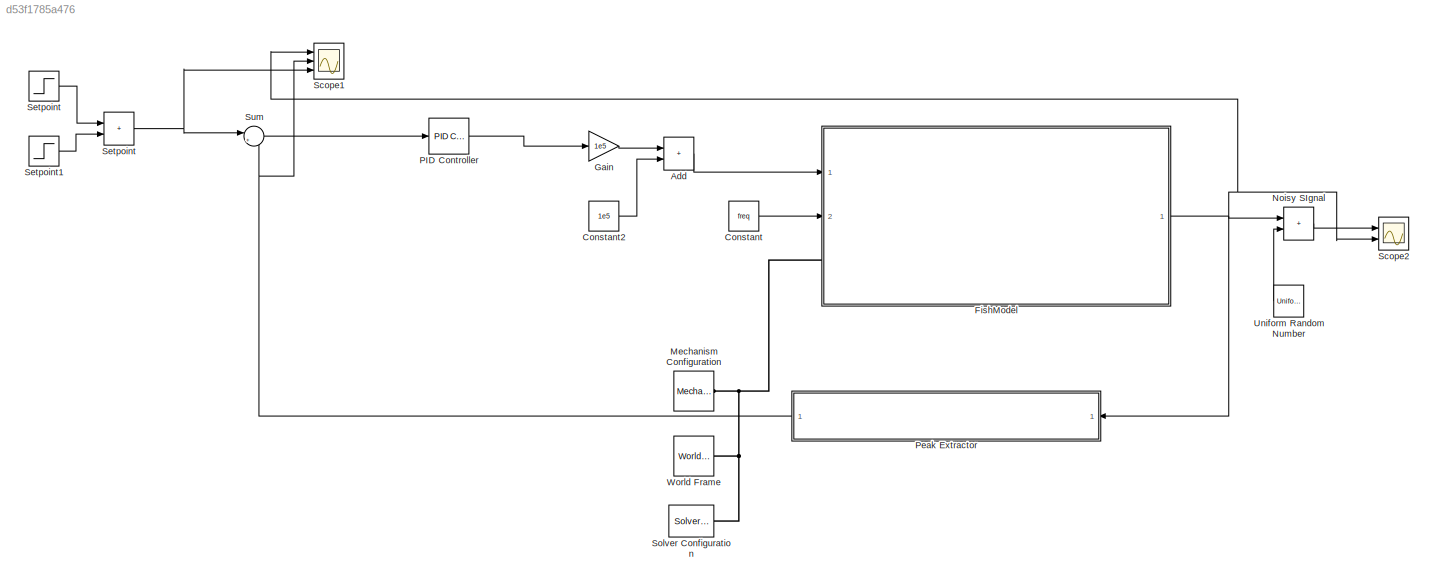
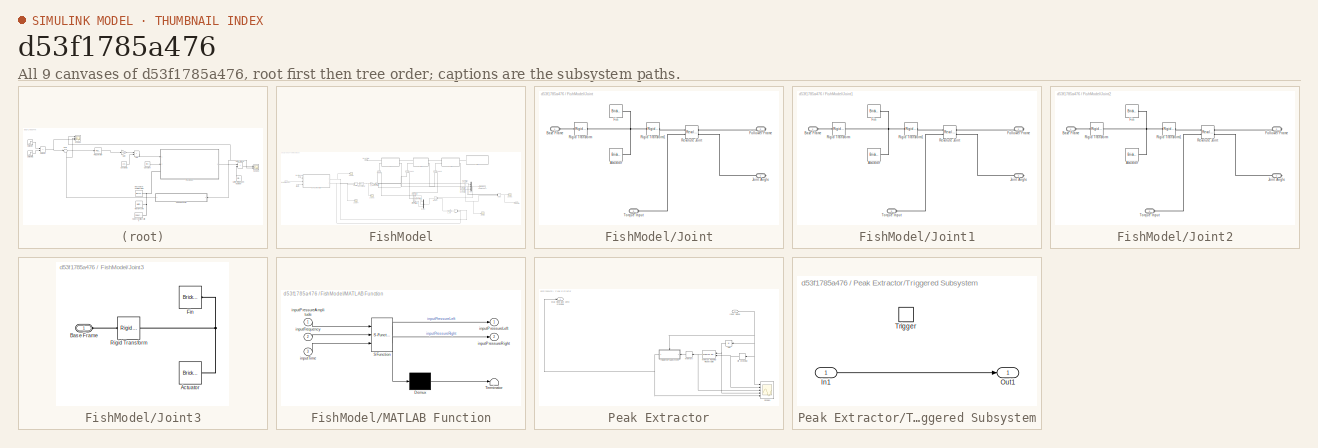
[diagram: thumbnail index - all 9 canvases of the model, root first then tree order]
MODEL slx_d53f1785a476
KIND model
CONFIG AbsTol = auto
CONFIG EnableMultiTasking = off
CONFIG FixedStep = auto
CONFIG InitFcn = initSoftFishCocontractionControl
CONFIG MaxStep = auto
CONFIG MinStep = auto
CONFIG RelTol = 1e-3
CONFIG SampleTimeConstraint = Unconstrained
CONFIG Solver = VariableStepAuto
CONFIG SolverName = VariableStepAuto
CONFIG StartTime = 0.0
CONFIG StopTime = 40
BLOCK [Sum] Add
  IconShape = rectangular
  Ports = [2, 1]
BLOCK [Constant] Constant
  Value = freq
BLOCK [Constant] Constant2
  Commented = on
  Value = 1e5
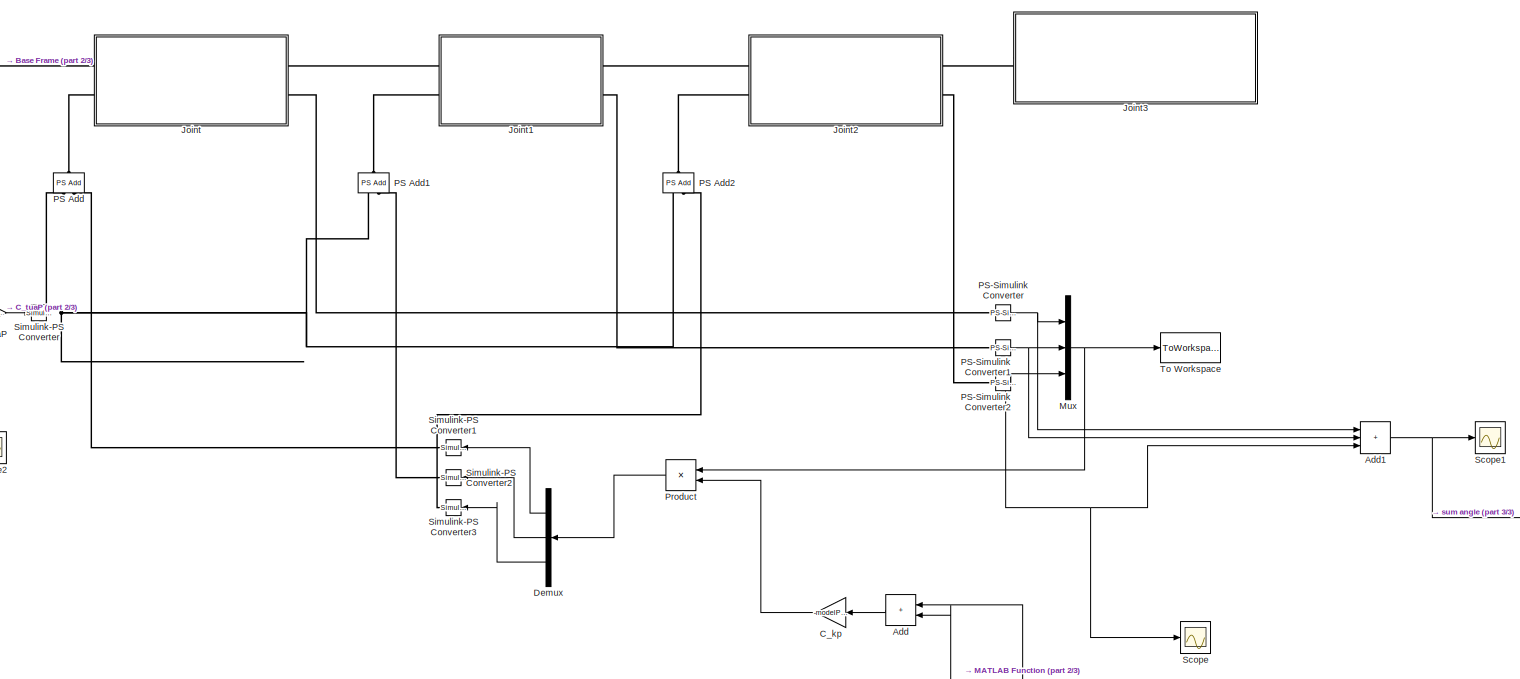
[diagram: FishModel - part 1/3, right side, full height]
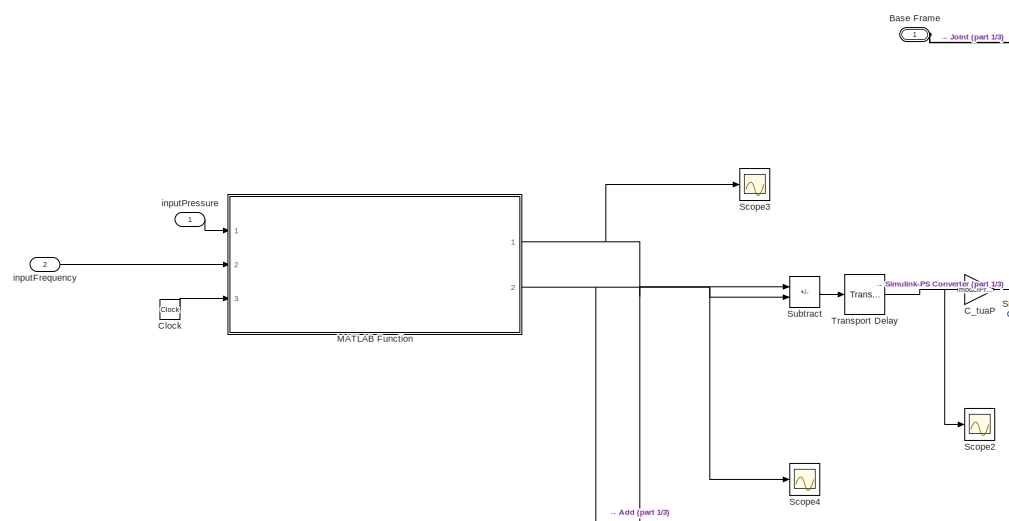
[diagram: FishModel - part 2/3, middle left region]
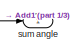
[diagram: FishModel - part 3/3, bottom right region]
BLOCK [SubSystem] FishModel
  Ports = [2, 1, 0, 0, 0, 1]
  RequestExecContextInheritance = off
BLOCK [Sum] FishModel/Add
  IconShape = rectangular
  Ports = [2, 1]
BLOCK [Sum] FishModel/Add1
  IconShape = rectangular
  Inputs = +++
  Ports = [3, 1]
BLOCK [PMIOPort] FishModel/Base Frame
  Side = Left
BLOCK [Gain] FishModel/C_kp
  Gain = -modelPressureStiffness
BLOCK [Gain] FishModel/C_tuaP
  Gain = modelPressureCoefficient
BLOCK [Clock] FishModel/Clock
BLOCK [Demux] FishModel/Demux
  Outputs = 3
  Ports = [1, 3]
BLOCK [SubSystem] FishModel/Joint
  Ports = [0, 0, 0, 0, 0, 2, 2]
  RequestExecContextInheritance = off
BLOCK [Reference] FishModel/Joint/Actuator  REF=sm_lib/Body Elements/Brick Solid
  Ports = [0, 0, 0, 0, 0, 0, 1]
  SourceBlock = sm_lib/Body Elements/Brick Solid
  SourceProductBaseCode = MS
  SourceType = Brick Solid
BLOCK [PMIOPort] FishModel/Joint/Base Frame
  Side = Left
BLOCK [Reference] FishModel/Joint/Fin  REF=sm_lib/Body Elements/Brick Solid
  Ports = [0, 0, 0, 0, 0, 0, 1]
  SourceBlock = sm_lib/Body Elements/Brick Solid
  SourceProductBaseCode = MS
  SourceType = Brick Solid
BLOCK [PMIOPort] FishModel/Joint/Follower Frame
  Port = 2
  Side = Right
BLOCK [PMIOPort] FishModel/Joint/Joint Angle 
  Port = 4
  Side = Right
BLOCK [Reference] FishModel/Joint/Revolute Joint  REF=sm_lib/Joints/Revolute Joint
  Ports = [0, 0, 0, 0, 0, 2, 2]
  SourceBlock = sm_lib/Joints/Revolute Joint
  SourceProductBaseCode = MS
  SourceType = Revolute Joint
BLOCK [Reference] FishModel/Joint/Rigid Transform  REF=sm_lib/Frames and
Transforms/Rigid
Transform
  Ports = [0, 0, 0, 0, 0, 1, 1]
  SourceBlock = sm_lib/Frames and\nTransforms/Rigid\nTransform
  SourceProductBaseCode = MS
  SourceType = Rigid\nTransform
BLOCK [Reference] FishModel/Joint/Rigid Transform1  REF=sm_lib/Frames and
Transforms/Rigid
Transform
  Ports = [0, 0, 0, 0, 0, 1, 1]
  SourceBlock = sm_lib/Frames and\nTransforms/Rigid\nTransform
  SourceProductBaseCode = MS
  SourceType = Rigid\nTransform
BLOCK [PMIOPort] FishModel/Joint/Torque Input
  Port = 3
  Side = Left
BLOCK [SubSystem] FishModel/Joint1
  Ports = [0, 0, 0, 0, 0, 2, 2]
  RequestExecContextInheritance = off
BLOCK [Reference] FishModel/Joint1/Actuator  REF=sm_lib/Body Elements/Brick Solid
  Ports = [0, 0, 0, 0, 0, 0, 1]
  SourceBlock = sm_lib/Body Elements/Brick Solid
  SourceProductBaseCode = MS
  SourceType = Brick Solid
BLOCK [PMIOPort] FishModel/Joint1/Base Frame
  Side = Left
BLOCK [Reference] FishModel/Joint1/Fin  REF=sm_lib/Body Elements/Brick Solid
  Ports = [0, 0, 0, 0, 0, 0, 1]
  SourceBlock = sm_lib/Body Elements/Brick Solid
  SourceProductBaseCode = MS
  SourceType = Brick Solid
BLOCK [PMIOPort] FishModel/Joint1/Follower Frame
  Port = 2
  Side = Right
BLOCK [PMIOPort] FishModel/Joint1/Joint Angle 
  Port = 4
  Side = Right
BLOCK [Reference] FishModel/Joint1/Revolute Joint  REF=sm_lib/Joints/Revolute Joint
  Ports = [0, 0, 0, 0, 0, 2, 2]
  SourceBlock = sm_lib/Joints/Revolute Joint
  SourceProductBaseCode = MS
  SourceType = Revolute Joint
BLOCK [Reference] FishModel/Joint1/Rigid Transform  REF=sm_lib/Frames and
Transforms/Rigid
Transform
  Ports = [0, 0, 0, 0, 0, 1, 1]
  SourceBlock = sm_lib/Frames and\nTransforms/Rigid\nTransform
  SourceProductBaseCode = MS
  SourceType = Rigid\nTransform
BLOCK [Reference] FishModel/Joint1/Rigid Transform1  REF=sm_lib/Frames and
Transforms/Rigid
Transform
  Ports = [0, 0, 0, 0, 0, 1, 1]
  SourceBlock = sm_lib/Frames and\nTransforms/Rigid\nTransform
  SourceProductBaseCode = MS
  SourceType = Rigid\nTransform
BLOCK [PMIOPort] FishModel/Joint1/Torque Input
  Port = 3
  Side = Left
BLOCK [SubSystem] FishModel/Joint2
  Ports = [0, 0, 0, 0, 0, 2, 2]
  RequestExecContextInheritance = off
BLOCK [Reference] FishModel/Joint2/Actuator  REF=sm_lib/Body Elements/Brick Solid
  Ports = [0, 0, 0, 0, 0, 0, 1]
  SourceBlock = sm_lib/Body Elements/Brick Solid
  SourceProductBaseCode = MS
  SourceType = Brick Solid
BLOCK [PMIOPort] FishModel/Joint2/Base Frame
  Side = Left
BLOCK [Reference] FishModel/Joint2/Fin  REF=sm_lib/Body Elements/Brick Solid
  Ports = [0, 0, 0, 0, 0, 0, 1]
  SourceBlock = sm_lib/Body Elements/Brick Solid
  SourceProductBaseCode = MS
  SourceType = Brick Solid
BLOCK [PMIOPort] FishModel/Joint2/Follower Frame
  Port = 2
  Side = Right
BLOCK [PMIOPort] FishModel/Joint2/Joint Angle 
  Port = 4
  Side = Right
BLOCK [Reference] FishModel/Joint2/Revolute Joint  REF=sm_lib/Joints/Revolute Joint
  Ports = [0, 0, 0, 0, 0, 2, 2]
  SourceBlock = sm_lib/Joints/Revolute Joint
  SourceProductBaseCode = MS
  SourceType = Revolute Joint
BLOCK [Reference] FishModel/Joint2/Rigid Transform  REF=sm_lib/Frames and
Transforms/Rigid
Transform
  Ports = [0, 0, 0, 0, 0, 1, 1]
  SourceBlock = sm_lib/Frames and\nTransforms/Rigid\nTransform
  SourceProductBaseCode = MS
  SourceType = Rigid\nTransform
BLOCK [Reference] FishModel/Joint2/Rigid Transform1  REF=sm_lib/Frames and
Transforms/Rigid
Transform
  Ports = [0, 0, 0, 0, 0, 1, 1]
  SourceBlock = sm_lib/Frames and\nTransforms/Rigid\nTransform
  SourceProductBaseCode = MS
  SourceType = Rigid\nTransform
BLOCK [PMIOPort] FishModel/Joint2/Torque Input
  Port = 3
  Side = Left
BLOCK [SubSystem] FishModel/Joint3
  Ports = [0, 0, 0, 0, 0, 1]
  RequestExecContextInheritance = off
BLOCK [Reference] FishModel/Joint3/Actuator  REF=sm_lib/Body Elements/Brick Solid
  Ports = [0, 0, 0, 0, 0, 0, 1]
  SourceBlock = sm_lib/Body Elements/Brick Solid
  SourceProductBaseCode = MS
  SourceType = Brick Solid
BLOCK [PMIOPort] FishModel/Joint3/Base Frame
  Side = Left
BLOCK [Reference] FishModel/Joint3/Fin  REF=sm_lib/Body Elements/Brick Solid
  Ports = [0, 0, 0, 0, 0, 0, 1]
  SourceBlock = sm_lib/Body Elements/Brick Solid
  SourceProductBaseCode = MS
  SourceType = Brick Solid
BLOCK [Reference] FishModel/Joint3/Rigid Transform  REF=sm_lib/Frames and
Transforms/Rigid
Transform
  Ports = [0, 0, 0, 0, 0, 1, 1]
  SourceBlock = sm_lib/Frames and\nTransforms/Rigid\nTransform
  SourceProductBaseCode = MS
  SourceType = Rigid\nTransform
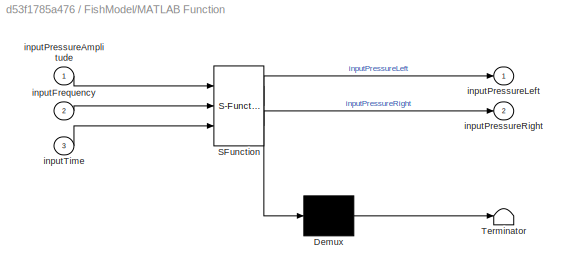
BLOCK [SubSystem] FishModel/MATLAB Function
  ErrorFcn = Stateflow.Translate.translate
  PermitHierarchicalResolution = ExplicitOnly
  Ports = [3, 2]
  RequestExecContextInheritance = off
  SFBlockType = MATLAB Function
  TreatAsAtomicUnit = on
BLOCK [Demux] FishModel/MATLAB Function/ Demux 
  Outputs = 1
  Ports = [1, 1]
BLOCK [S-Function] FishModel/MATLAB Function/ SFunction 
  EnableBusSupport = on
  FunctionName = sf_sfun
  PortCounts = [3 3]
  Ports = [3, 3]
  SFcnIsStateOwnerBlock = off
  SFunctionDeploymentMode = off
  Tag = Stateflow S-Function 2
BLOCK [Terminator] FishModel/MATLAB Function/ Terminator 
BLOCK [Inport] FishModel/MATLAB Function/inputFrequency
  Port = 2
BLOCK [Inport] FishModel/MATLAB Function/inputPressureAmplitude
BLOCK [Outport] FishModel/MATLAB Function/inputPressureLeft
BLOCK [Outport] FishModel/MATLAB Function/inputPressureRight
  Port = 2
BLOCK [Inport] FishModel/MATLAB Function/inputTime
  Port = 3
BLOCK [Mux] FishModel/Mux
  DisplayOption = bar
  Inputs = 3
  Ports = [3, 1]
BLOCK [Reference] FishModel/PS Add  REF=fl_lib/Physical Signals/Functions/PS Add
  NameLocation = right
  Ports = [0, 0, 0, 0, 0, 2, 1]
  SourceBlock = fl_lib/Physical Signals/Functions/PS Add
  SourceProductBaseCode = SS
  SourceType = PS Add
BLOCK [Reference] FishModel/PS Add1  REF=fl_lib/Physical Signals/Functions/PS Add
  NameLocation = right
  Ports = [0, 0, 0, 0, 0, 2, 1]
  SourceBlock = fl_lib/Physical Signals/Functions/PS Add
  SourceProductBaseCode = SS
  SourceType = PS Add
BLOCK [Reference] FishModel/PS Add2  REF=fl_lib/Physical Signals/Functions/PS Add
  NameLocation = right
  Ports = [0, 0, 0, 0, 0, 2, 1]
  SourceBlock = fl_lib/Physical Signals/Functions/PS Add
  SourceProductBaseCode = SS
  SourceType = PS Add
BLOCK [Reference] FishModel/PS-Simulink Converter  REF=nesl_utility/PS-Simulink
Converter
  Ports = [0, 1, 0, 0, 0, 1]
  SourceBlock = nesl_utility/PS-Simulink\nConverter
  SourceProductBaseCode = SS
  SourceType = PS-Simulink\nConverter
BLOCK [Reference] FishModel/PS-Simulink Converter1  REF=nesl_utility/PS-Simulink
Converter
  Ports = [0, 1, 0, 0, 0, 1]
  SourceBlock = nesl_utility/PS-Simulink\nConverter
  SourceProductBaseCode = SS
  SourceType = PS-Simulink\nConverter
BLOCK [Reference] FishModel/PS-Simulink Converter2  REF=nesl_utility/PS-Simulink
Converter
  Ports = [0, 1, 0, 0, 0, 1]
  SourceBlock = nesl_utility/PS-Simulink\nConverter
  SourceProductBaseCode = SS
  SourceType = PS-Simulink\nConverter
BLOCK [Product] FishModel/Product
  Ports = [2, 1]
BLOCK [Scope] FishModel/Scope
  Floating = off
  NumInputPorts = 1
  Ports = [1]
  ScopeSpecificationString = Simulink.scopes.TimeScopeBlockCfg('CurrentConfiguration', extmgr.ConfigurationSet(extmgr.Configuration('Core','General UI',true),extmgr.Configuration('Core','Source UI',true),extmgr.Configuration('Sources','WiredSimulink',true,'DataLoggingVariableName','ScopeData1'),extmgr.Configuration('Visuals','Time Domain',true,'SerializedDisplays',{struct('MinYLimReal','-0.20952','MaxYLimReal','0.43411','YLab...<+1410ch>
BLOCK [Scope] FishModel/Scope1
  Floating = off
  NumInputPorts = 1
  Ports = [1]
  ScopeSpecificationString = Simulink.scopes.TimeScopeBlockCfg('CurrentConfiguration', extmgr.ConfigurationSet(extmgr.Configuration('Core','General UI',true),extmgr.Configuration('Core','Source UI',true),extmgr.Configuration('Sources','WiredSimulink',true,'DataLoggingVariableName','ScopeData1'),extmgr.Configuration('Visuals','Time Domain',true,'SerializedDisplays',{struct('MinYLimReal','-0.95111','MaxYLimReal','1.6425','YLabe...<+1432ch>
BLOCK [Scope] FishModel/Scope2
  Floating = off
  NumInputPorts = 1
  Ports = [1]
  ScopeSpecificationString = Simulink.scopes.TimeScopeBlockCfg('CurrentConfiguration', extmgr.ConfigurationSet(extmgr.Configuration('Core','General UI',true),extmgr.Configuration('Core','Source UI',true),extmgr.Configuration('Sources','WiredSimulink',true,'DataLoggingVariableName','ScopeData1'),extmgr.Configuration('Visuals','Time Domain',true,'SerializedDisplays',{struct('MinYLimReal','-171029.09365','MaxYLimReal','169253.65...<+1441ch>
BLOCK [Scope] FishModel/Scope3
  Floating = off
  NumInputPorts = 1
  Ports = [1]
  ScopeSpecificationString = Simulink.scopes.TimeScopeBlockCfg('CurrentConfiguration', extmgr.ConfigurationSet(extmgr.Configuration('Core','General UI',true),extmgr.Configuration('Core','Source UI',true),extmgr.Configuration('Sources','WiredSimulink',true,'DataLoggingVariableName','ScopeData2'),extmgr.Configuration('Visuals','Time Domain',true,'SerializedDisplays',{struct('MinYLimReal','-16903.17287','MaxYLimReal','152128.555...<+1480ch>
BLOCK [Scope] FishModel/Scope4
  Floating = off
  NumInputPorts = 1
  Ports = [1]
  ScopeSpecificationString = Simulink.scopes.TimeScopeBlockCfg('CurrentConfiguration', extmgr.ConfigurationSet(extmgr.Configuration('Core','General UI',true),extmgr.Configuration('Core','Source UI',true),extmgr.Configuration('Sources','WiredSimulink',true,'DataLoggingVariableName','ScopeData3'),extmgr.Configuration('Visuals','Time Domain',true,'SerializedDisplays',{struct('MinYLimReal','-17125.10231','MaxYLimReal','154125.920...<+1456ch>
BLOCK [Reference] FishModel/Simulink-PS Converter  REF=nesl_utility/Simulink-PS
Converter
  Ports = [1, 0, 0, 0, 0, 0, 1]
  SourceBlock = nesl_utility/Simulink-PS\nConverter
  SourceProductBaseCode = SS
  SourceType = Simulink-PS\nConverter
BLOCK [Reference] FishModel/Simulink-PS Converter1  REF=nesl_utility/Simulink-PS
Converter
  Ports = [1, 0, 0, 0, 0, 0, 1]
  SourceBlock = nesl_utility/Simulink-PS\nConverter
  SourceProductBaseCode = SS
  SourceType = Simulink-PS\nConverter
BLOCK [Reference] FishModel/Simulink-PS Converter2  REF=nesl_utility/Simulink-PS
Converter
  Ports = [1, 0, 0, 0, 0, 0, 1]
  SourceBlock = nesl_utility/Simulink-PS\nConverter
  SourceProductBaseCode = SS
  SourceType = Simulink-PS\nConverter
BLOCK [Reference] FishModel/Simulink-PS Converter3  REF=nesl_utility/Simulink-PS
Converter
  Ports = [1, 0, 0, 0, 0, 0, 1]
  SourceBlock = nesl_utility/Simulink-PS\nConverter
  SourceProductBaseCode = SS
  SourceType = Simulink-PS\nConverter
BLOCK [Sum] FishModel/Subtract
  IconShape = rectangular
  Inputs = +-
  Ports = [2, 1]
BLOCK [ToWorkspace] FishModel/To Workspace
  FixptAsFi = on
  MaxDataPoints = inf
  Ports = [1]
  SampleTime = -1
  SaveFormat = Structure With Time
  VariableName = angles
BLOCK [TransportDelay] FishModel/Transport Delay
  Commented = through
  DelayTime = modelPressureLag
  Ports = [1, 1]
BLOCK [Inport] FishModel/inputFrequency
  Port = 2
BLOCK [Inport] FishModel/inputPressure
BLOCK [Outport] FishModel/sum angle
BLOCK [Gain] Gain
  Gain = 1e5
BLOCK [Reference] Mechanism Configuration  REF=sm_lib/Utilities/Mechanism
Configuration
  Ports = [0, 0, 0, 0, 0, 0, 1]
  SourceBlock = sm_lib/Utilities/Mechanism\nConfiguration
  SourceProductBaseCode = MS
  SourceType = Mechanism\nConfiguration
BLOCK [Sum] Noisy SIgnal
  IconShape = rectangular
  Ports = [2, 1]
BLOCK [Reference] PID Controller  REF=simulink/Continuous/PID Controller
  Ports = [1, 1]
  SourceBlock = simulink/Continuous/PID Controller
  SourceProductBaseCode = SL
  SourceType = PID 1dof
BLOCK [SubSystem] Peak Extractor
  Ports = [1, 1]
  RequestExecContextInheritance = off
BLOCK [Abs] Peak Extractor/Abs
  SaturateOnIntegerOverflow = off
BLOCK [HitCross] Peak Extractor/Hit Crossing
  Ports = [1, 1]
BLOCK [Inport] Peak Extractor/Input signal
BLOCK [Outport] Peak Extractor/Max since last zero crossing
BLOCK [Memory] Peak Extractor/Memory
BLOCK [Reference] Peak Extractor/MinMax Running Resettable  REF=simulink/Math
Operations/MinMax
Running
Resettable
  Ports = [2, 1]
  SourceBlock = simulink/Math\nOperations/MinMax\nRunning\nResettable
  SourceProductBaseCode = SL
  SourceType = MinMax Running Resettable
BLOCK [Scope] Peak Extractor/Scope1
  Floating = off
  NumInputPorts = 5
  Ports = [5]
  ScopeSpecificationString = Simulink.scopes.TimeScopeBlockCfg('CurrentConfiguration', extmgr.ConfigurationSet(extmgr.Configuration('Core','General UI',true),extmgr.Configuration('Core','Source UI',true),extmgr.Configuration('Sources','WiredSimulink',true,'DataLoggingVariableName','ScopeData2'),extmgr.Configuration('Visuals','Time Domain',true,'TimeAxisLabels','All','SerializedDisplays',{struct('MinYLimReal','-2.13565','MaxYL...<+3559ch>
BLOCK [SubSystem] Peak Extractor/Triggered Subsystem
  Ports = [1, 1, 0, 1]
  RequestExecContextInheritance = off
  TreatAsAtomicUnit = on
BLOCK [Inport] Peak Extractor/Triggered Subsystem/In1
BLOCK [Outport] Peak Extractor/Triggered Subsystem/Out1
BLOCK [TriggerPort] Peak Extractor/Triggered Subsystem/Trigger
  Ports = []
  StatesWhenEnabling = held
  TriggerType = either
  VariantControl = Variant
BLOCK [Scope] Scope1
  Floating = off
  NumInputPorts = 3
  Ports = [3]
  ScopeSpecificationString = Simulink.scopes.TimeScopeBlockCfg('CurrentConfiguration', extmgr.ConfigurationSet(extmgr.Configuration('Core','General UI',true),extmgr.Configuration('Core','Source UI',true),extmgr.Configuration('Sources','WiredSimulink',true,'DataLoggingVariableName','ScopeData1'),extmgr.Configuration('Visuals','Time Domain',true,'SerializedDisplays',{struct('MinYLimReal','-1.81217','MaxYLimReal','1.81079','YLab...<+2130ch>
BLOCK [Scope] Scope2
  Floating = off
  NumInputPorts = 2
  Ports = [2]
  ScopeSpecificationString = Simulink.scopes.TimeScopeBlockCfg('CurrentConfiguration', extmgr.ConfigurationSet(extmgr.Configuration('Core','General UI',true),extmgr.Configuration('Core','Source UI',true),extmgr.Configuration('Sources','WiredSimulink',true,'DataLoggingVariableName','ScopeData1'),extmgr.Configuration('Visuals','Time Domain',true,'SerializedDisplays',{struct('MinYLimReal','-1.81217','MaxYLimReal','1.81079','YLab...<+1450ch>
BLOCK [Step] Setpoint
  After = Setpoint2
  Before = Setpoint1
  SampleTime = 0
  Time = SwitchTime1
BLOCK [Sum] Setpoint 
  IconShape = rectangular
  Ports = [2, 1]
BLOCK [Step] Setpoint1
  After = Setpoint3-Setpoint2
  SampleTime = 0
  Time = SwitchTime2
BLOCK [Reference] Solver Configuration  REF=nesl_utility/Solver
Configuration
  Ports = [0, 0, 0, 0, 0, 0, 1]
  SourceBlock = nesl_utility/Solver\nConfiguration
  SourceProductBaseCode = SS
  SourceType = Solver\nConfiguration
BLOCK [Sum] Sum
  Inputs = |+-
  Ports = [2, 1]
BLOCK [UniformRandomNumber] Uniform Random Number
  Maximum = NoiseLevel
  Minimum = -NoiseLevel
  SampleTime = 0.1
BLOCK [Reference] World Frame  REF=sm_lib/Frames and
Transforms/World Frame
  Ports = [0, 0, 0, 0, 0, 0, 1]
  SourceBlock = sm_lib/Frames and\nTransforms/World Frame
  SourceProductBaseCode = MS
  SourceType = World Frame
LINE Add:1 -> FishModel:1
LINE Constant2:1 -> Add:2
LINE Constant:1 -> FishModel:2
NET FishModel/Add1:1 -> FishModel/Scope1:1, FishModel/sum angle:1
LINE FishModel/Add:1 -> FishModel/C_kp:1
LINE FishModel/C_kp:1 -> FishModel/Product:2
LINE FishModel/C_tuaP:1 -> FishModel/Simulink-PS Converter:1
LINE FishModel/Clock:1 -> FishModel/MATLAB Function:3
LINE FishModel/Demux:1 -> FishModel/Simulink-PS Converter1:1
LINE FishModel/Demux:2 -> FishModel/Simulink-PS Converter2:1
LINE FishModel/Demux:3 -> FishModel/Simulink-PS Converter3:1
NET FishModel/MATLAB Function:1 -> FishModel/Add:1, FishModel/Scope3:1, FishModel/Subtract:1
NET FishModel/MATLAB Function:2 -> FishModel/Add:2, FishModel/Scope4:1, FishModel/Subtract:2
NET FishModel/Mux:1 -> FishModel/Product:1, FishModel/To Workspace:1
NET FishModel/PS-Simulink Converter1:1 -> FishModel/Add1:2, FishModel/Mux:2
NET FishModel/PS-Simulink Converter2:1 -> FishModel/Add1:3, FishModel/Mux:3, FishModel/Scope:1
NET FishModel/PS-Simulink Converter:1 -> FishModel/Add1:1, FishModel/Mux:1
LINE FishModel/Product:1 -> FishModel/Demux:1
LINE FishModel/Subtract:1 -> FishModel/Transport Delay:1
NET FishModel/Transport Delay:1 -> FishModel/C_tuaP:1, FishModel/Scope2:1
LINE FishModel/inputFrequency:1 -> FishModel/MATLAB Function:2
LINE FishModel/inputPressure:1 -> FishModel/MATLAB Function:1
NET FishModel:1 -> Noisy SIgnal:1, Peak Extractor:1, Scope1:1, Scope2:2
LINE Gain:1 -> Add:1
LINE Noisy SIgnal:1 -> Scope2:1
LINE PID Controller:1 -> Gain:1
NET Peak Extractor/Abs:1 -> Peak Extractor/MinMax Running Resettable:1, Peak Extractor/Scope1:4
NET Peak Extractor/Hit Crossing:1 -> Peak Extractor/MinMax Running Resettable:2, Peak Extractor/Scope1:2
NET Peak Extractor/Input signal:1 -> Peak Extractor/Abs:1, Peak Extractor/Hit Crossing:1, Peak Extractor/Scope1:1, Peak Extractor/Triggered Subsystem:trigger
LINE Peak Extractor/Memory:1 -> Peak Extractor/Triggered Subsystem:1
NET Peak Extractor/MinMax Running Resettable:1 -> Peak Extractor/Memory:1, Peak Extractor/Scope1:3
LINE Peak Extractor/Triggered Subsystem/In1:1 -> Peak Extractor/Triggered Subsystem/Out1:1
NET Peak Extractor/Triggered Subsystem:1 -> Peak Extractor/Max since last zero crossing:1, Peak Extractor/Scope1:5
NET Peak Extractor:1 -> Scope1:2, Sum:2
NET Setpoint :1 -> Scope1:3, Sum:1
LINE Setpoint1:1 -> Setpoint :2
LINE Setpoint:1 -> Setpoint :1
LINE Sum:1 -> PID Controller:1
LINE Uniform Random Number:1 -> Noisy SIgnal:2
PLINE FishModel/Base Frame:RConn1 -- FishModel/Joint:LConn1
PNET net1: FishModel/Joint/Actuator:RConn1 -- FishModel/Joint/Fin:RConn1 -- FishModel/Joint/Rigid Transform1:LConn1 -- FishModel/Joint/Rigid Transform:RConn1
PLINE FishModel/Joint/Base Frame:RConn1 -- FishModel/Joint/Rigid Transform:LConn1
PLINE FishModel/Joint/Follower Frame:RConn1 -- FishModel/Joint/Revolute Joint:RConn1
PLINE FishModel/Joint/Joint Angle :RConn1 -- FishModel/Joint/Revolute Joint:RConn2
PLINE FishModel/Joint/Revolute Joint:LConn1 -- FishModel/Joint/Rigid Transform1:RConn1
PLINE FishModel/Joint/Revolute Joint:LConn2 -- FishModel/Joint/Torque Input:RConn1
PNET net2: FishModel/Joint1/Actuator:RConn1 -- FishModel/Joint1/Fin:RConn1 -- FishModel/Joint1/Rigid Transform1:LConn1 -- FishModel/Joint1/Rigid Transform:RConn1
PLINE FishModel/Joint1/Base Frame:RConn1 -- FishModel/Joint1/Rigid Transform:LConn1
PLINE FishModel/Joint1/Follower Frame:RConn1 -- FishModel/Joint1/Revolute Joint:RConn1
PLINE FishModel/Joint1/Joint Angle :RConn1 -- FishModel/Joint1/Revolute Joint:RConn2
PLINE FishModel/Joint1/Revolute Joint:LConn1 -- FishModel/Joint1/Rigid Transform1:RConn1
PLINE FishModel/Joint1/Revolute Joint:LConn2 -- FishModel/Joint1/Torque Input:RConn1
PLINE FishModel/Joint1:LConn1 -- FishModel/Joint:RConn1
PLINE FishModel/Joint1:LConn2 -- FishModel/PS Add1:RConn1
PLINE FishModel/Joint1:RConn1 -- FishModel/Joint2:LConn1
PLINE FishModel/Joint1:RConn2 -- FishModel/PS-Simulink Converter1:LConn1
PNET net3: FishModel/Joint2/Actuator:RConn1 -- FishModel/Joint2/Fin:RConn1 -- FishModel/Joint2/Rigid Transform1:LConn1 -- FishModel/Joint2/Rigid Transform:RConn1
PLINE FishModel/Joint2/Base Frame:RConn1 -- FishModel/Joint2/Rigid Transform:LConn1
PLINE FishModel/Joint2/Follower Frame:RConn1 -- FishModel/Joint2/Revolute Joint:RConn1
PLINE FishModel/Joint2/Joint Angle :RConn1 -- FishModel/Joint2/Revolute Joint:RConn2
PLINE FishModel/Joint2/Revolute Joint:LConn1 -- FishModel/Joint2/Rigid Transform1:RConn1
PLINE FishModel/Joint2/Revolute Joint:LConn2 -- FishModel/Joint2/Torque Input:RConn1
PLINE FishModel/Joint2:LConn2 -- FishModel/PS Add2:RConn1
PLINE FishModel/Joint2:RConn1 -- FishModel/Joint3:LConn1
PLINE FishModel/Joint2:RConn2 -- FishModel/PS-Simulink Converter2:LConn1
PNET net4: FishModel/Joint3/Actuator:RConn1 -- FishModel/Joint3/Fin:RConn1 -- FishModel/Joint3/Rigid Transform:RConn1
PLINE FishModel/Joint3/Base Frame:RConn1 -- FishModel/Joint3/Rigid Transform:LConn1
PLINE FishModel/Joint:LConn2 -- FishModel/PS Add:RConn1
PLINE FishModel/Joint:RConn2 -- FishModel/PS-Simulink Converter:LConn1
PNET net5: FishModel/PS Add1:LConn1 -- FishModel/PS Add2:LConn1 -- FishModel/PS Add:LConn1 -- FishModel/Simulink-PS Converter:RConn1
PLINE FishModel/PS Add1:LConn2 -- FishModel/Simulink-PS Converter2:RConn1
PLINE FishModel/PS Add2:LConn2 -- FishModel/Simulink-PS Converter3:RConn1
PLINE FishModel/PS Add:LConn2 -- FishModel/Simulink-PS Converter1:RConn1
PNET net6: FishModel:LConn1 -- Mechanism Configuration:RConn1 -- Solver Configuration:RConn1 -- World Frame:RConn1
note: NET lines group one-source signal fan-out (src -> all destinations, sorted); 1:1 wires keep LINE; PNET lines group multi-terminal physical nets as a canonical sorted terminal list (undirected conserving connections); 2-terminal nets keep the pairwise PLINE form
CHART FishModel/MATLAB Function states=1 transitions=1
  STATE_LABEL 'eML_blk_kernel()'
  STATE_LABEL 'SCRIPT:\nfunction [inputPressureLeft, inputPressureRight] = generateSquareWave(inputPressureAmplitude, inputFrequency, inputTime)\n    inputPressureLeft  = 0.5 * (inputPressureAmplitude * square( (2*pi*inputFrequency)*inputTime ) + inputPressureAmplitude);\n    inputPressureRight = 0.5 * inputPressureAmplitude * (1-square( (2*pi*inputFrequency)*inputTime ));\nend'
CHART  states=0 transitions=0
